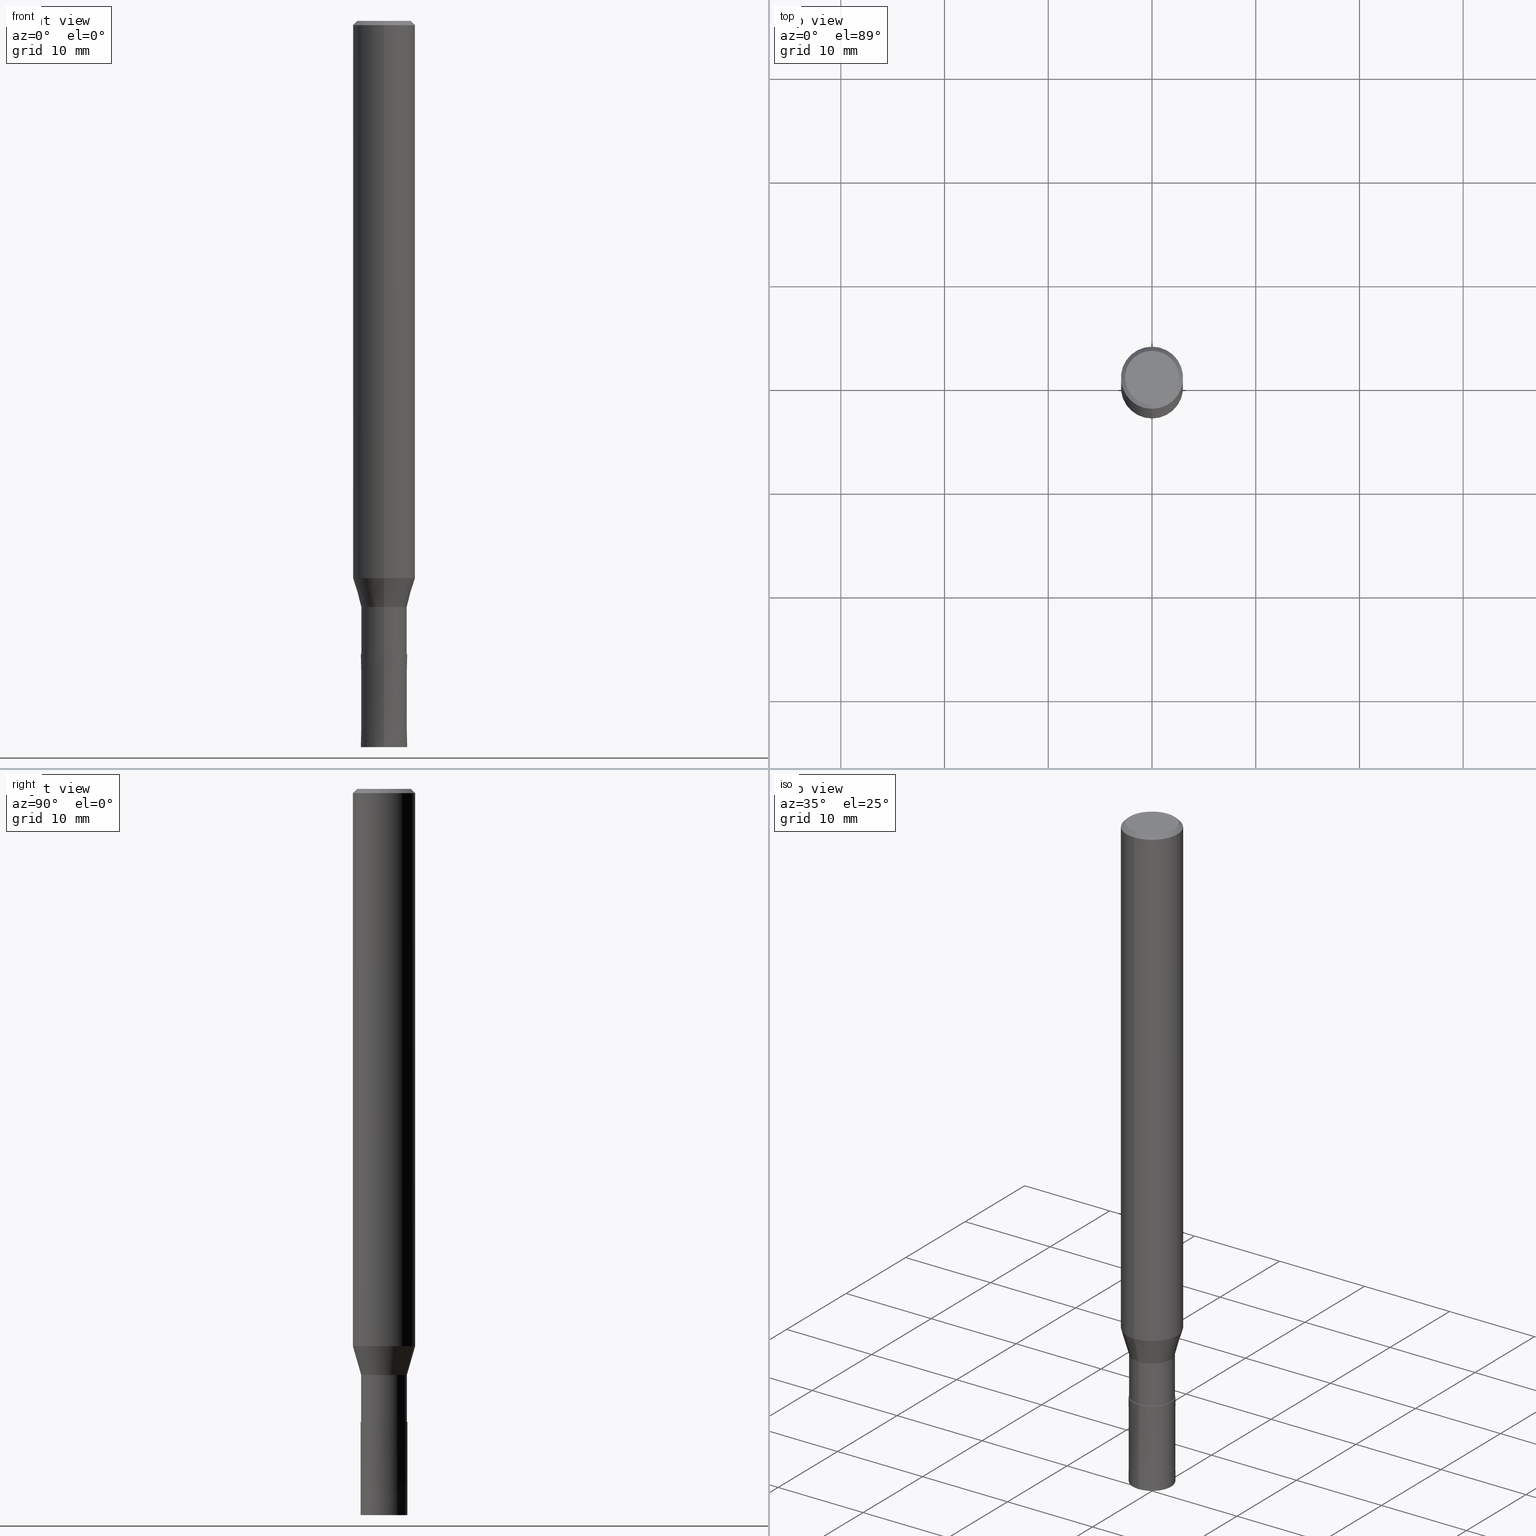
[diagram: canonical four-view strip — front | top / right | iso, engineering-drawing reading convention]
A machine part, canonical four-view strip (front | top / right | iso — engineering-drawing reading convention). The complete STEP part file that produces these views, byte-faithful:
ISO-10303-21;
HEADER;
FILE_DESCRIPTION(('no description'),'unknown implementation level');
FILE_NAME('DLC-AZS3045-135-Huellk.stp','  ',('CIMSOURCE GmbH'),('CADClick - KiM GmbH - www.kimweb.de'),'unknown preprocess','ACIS','unknown authorization');
FILE_SCHEMA(('automotive_design'));
ENDSEC;
DATA;
#1=MECHANICAL_DESIGN_GEOMETRIC_PRESENTATION_REPRESENTATION(' ',(#14,#15,#16,#17,#18,#19,#20,#21,#22,#23,#24,#25,#26,#27,#28,#29,#30,#31,#32,#33,#34,#35,#36,#37,#38,#39,#40,#41,#42,#43,#44,#45,#46,#47,#48,#49,#50,#51,#52,#53,#54,#55,#56,#57,#58,#59,#60,#61,#62,#63,#64,#65,#66,#67,#68,#69,#70,#71,#72),#10);
#2=PRODUCT_DEFINITION_CONTEXT('',#73,'design');
#3=APPLICATION_PROTOCOL_DEFINITION('INTERNATIONAL STANDARD','automotive_design',1994,#73);
#4=PRODUCT_CATEGORY_RELATIONSHIP('NONE','NONE',#74,#75);
#5=SHAPE_DEFINITION_REPRESENTATION(#76,#77);
#6=PRODUCT_DEFINITION_CONTEXT('',#78,'design');
#7=APPLICATION_PROTOCOL_DEFINITION('INTERNATIONAL STANDARD','automotive_design',1994,#78);
#8=PRODUCT_CATEGORY_RELATIONSHIP('NONE','NONE',#79,#80);
#9=SHAPE_DEFINITION_REPRESENTATION(#81,#82);
#10= (GEOMETRIC_REPRESENTATION_CONTEXT(3)GLOBAL_UNCERTAINTY_ASSIGNED_CONTEXT((#85))GLOBAL_UNIT_ASSIGNED_CONTEXT((#87,#88,#89))REPRESENTATION_CONTEXT('NONE','WORKSPACE'));
#14=STYLED_ITEM('',(#91),#92);
#15=STYLED_ITEM('',(#93),#94);
#16=STYLED_ITEM('',(#95),#96);
#17=STYLED_ITEM('',(#97),#98);
#18=STYLED_ITEM('',(#99),#100);
#19=STYLED_ITEM('',(#101),#102);
#20=STYLED_ITEM('',(#103),#104);
#21=STYLED_ITEM('',(#105),#106);
#22=STYLED_ITEM('',(#107),#108);
#23=STYLED_ITEM('',(#109),#110);
#24=STYLED_ITEM('',(#111),#112);
#25=STYLED_ITEM('',(#113),#114);
#26=STYLED_ITEM('',(#115),#116);
#27=STYLED_ITEM('',(#117),#118);
#28=STYLED_ITEM('',(#119),#120);
#29=STYLED_ITEM('',(#121),#122);
#30=STYLED_ITEM('',(#123),#124);
#31=STYLED_ITEM('',(#125),#126);
#32=STYLED_ITEM('',(#127),#128);
#33=STYLED_ITEM('',(#129),#130);
#34=STYLED_ITEM('',(#131),#132);
#35=STYLED_ITEM('',(#133),#134);
#36=STYLED_ITEM('',(#135),#136);
#37=STYLED_ITEM('',(#137),#138);
#38=STYLED_ITEM('',(#139),#140);
#39=STYLED_ITEM('',(#141),#142);
#40=STYLED_ITEM('',(#143),#144);
#41=STYLED_ITEM('',(#145),#146);
#42=STYLED_ITEM('',(#147),#148);
#43=STYLED_ITEM('',(#149),#150);
#44=STYLED_ITEM('',(#151),#152);
#45=STYLED_ITEM('',(#153),#154);
#46=STYLED_ITEM('',(#155),#156);
#47=STYLED_ITEM('',(#157),#158);
#48=STYLED_ITEM('',(#159),#160);
#49=STYLED_ITEM('',(#161),#162);
#50=STYLED_ITEM('',(#163),#164);
#51=STYLED_ITEM('',(#165),#166);
#52=STYLED_ITEM('',(#167),#168);
#53=STYLED_ITEM('',(#169),#170);
#54=STYLED_ITEM('',(#171),#172);
#55=STYLED_ITEM('',(#173),#174);
#56=STYLED_ITEM('',(#175),#176);
#57=STYLED_ITEM('',(#177),#178);
#58=STYLED_ITEM('',(#179),#180);
#59=STYLED_ITEM('',(#181),#182);
#60=STYLED_ITEM('',(#183),#184);
#61=STYLED_ITEM('',(#185),#186);
#62=STYLED_ITEM('',(#187),#188);
#63=STYLED_ITEM('',(#189),#190);
#64=STYLED_ITEM('',(#191),#192);
#65=STYLED_ITEM('',(#193),#194);
#66=STYLED_ITEM('',(#195),#196);
#67=STYLED_ITEM('',(#197),#198);
#68=STYLED_ITEM('',(#199),#200);
#69=STYLED_ITEM('',(#201),#202);
#70=STYLED_ITEM('',(#203),#204);
#71=STYLED_ITEM('',(#205),#206);
#72=STYLED_ITEM('',(#207),#208);
#73=APPLICATION_CONTEXT(' ');
#74=PRODUCT_CATEGORY('part','NONE');
#75=PRODUCT_RELATED_PRODUCT_CATEGORY('detail',' ',(#209));
#76=PRODUCT_DEFINITION_SHAPE('NONE','NONE',#210);
#77=ADVANCED_BREP_SHAPE_REPRESENTATION('1',(#96,#211),#10);
#78=APPLICATION_CONTEXT(' ');
#79=PRODUCT_CATEGORY('part','NONE');
#80=PRODUCT_RELATED_PRODUCT_CATEGORY('detail',' ',(#212));
#81=PRODUCT_DEFINITION_SHAPE('NONE','NONE',#213);
#82=ADVANCED_BREP_SHAPE_REPRESENTATION('2',(#200,#214),#10);
#85=UNCERTAINTY_MEASURE_WITH_UNIT(LENGTH_MEASURE(1.0E-006),#87,'','');
#87= (CONVERSION_BASED_UNIT('MILLIMETRE',#217)LENGTH_UNIT()NAMED_UNIT(#220));
#88= (NAMED_UNIT(#222)PLANE_ANGLE_UNIT()SI_UNIT($,.RADIAN.));
#89= (NAMED_UNIT(#222)SOLID_ANGLE_UNIT()SI_UNIT($,.STERADIAN.));
#91=PRESENTATION_STYLE_ASSIGNMENT((#228));
#92=VERTEX_POINT('',#229);
#93=PRESENTATION_STYLE_ASSIGNMENT((#230));
#94=EDGE_CURVE('',#114,#116,#231,.T.);
#95=PRESENTATION_STYLE_ASSIGNMENT((#232));
#96=MANIFOLD_SOLID_BREP('1',#233);
#97=PRESENTATION_STYLE_ASSIGNMENT((#234));
#98=EDGE_CURVE('',#156,#196,#235,.T.);
#99=PRESENTATION_STYLE_ASSIGNMENT((#236));
#100=EDGE_CURVE('',#114,#132,#237,.T.);
#101=PRESENTATION_STYLE_ASSIGNMENT((#238));
#102=EDGE_CURVE('',#140,#114,#239,.T.);
#103=PRESENTATION_STYLE_ASSIGNMENT((#240));
#104=VERTEX_POINT('',#241);
#105=PRESENTATION_STYLE_ASSIGNMENT((#242));
#106=EDGE_CURVE('',#92,#148,#243,.T.);
#107=PRESENTATION_STYLE_ASSIGNMENT((#244));
#108=EDGE_CURVE('',#148,#92,#245,.T.);
#109=PRESENTATION_STYLE_ASSIGNMENT((#246));
#110=ADVANCED_FACE('',(#247),#248,.T.);
#111=PRESENTATION_STYLE_ASSIGNMENT((#249));
#112=EDGE_CURVE('',#198,#178,#250,.T.);
#113=PRESENTATION_STYLE_ASSIGNMENT((#251));
#114=VERTEX_POINT('',#252);
#115=PRESENTATION_STYLE_ASSIGNMENT((#253));
#116=VERTEX_POINT('',#254);
#117=PRESENTATION_STYLE_ASSIGNMENT((#255));
#118=EDGE_CURVE('',#180,#132,#256,.T.);
#119=PRESENTATION_STYLE_ASSIGNMENT((#257));
#120=EDGE_CURVE('',#196,#156,#258,.T.);
#121=PRESENTATION_STYLE_ASSIGNMENT((#259));
#122=ADVANCED_FACE('',(#260),#261,.T.);
#123=PRESENTATION_STYLE_ASSIGNMENT((#262));
#124=EDGE_CURVE('',#116,#192,#263,.T.);
#125=PRESENTATION_STYLE_ASSIGNMENT((#264));
#126=EDGE_CURVE('',#140,#192,#265,.T.);
#127=PRESENTATION_STYLE_ASSIGNMENT((#266));
#128=ADVANCED_FACE('',(#267),#268,.T.);
#129=PRESENTATION_STYLE_ASSIGNMENT((#269));
#130=EDGE_CURVE('',#178,#204,#270,.T.);
#131=PRESENTATION_STYLE_ASSIGNMENT((#271));
#132=VERTEX_POINT('',#272);
#133=PRESENTATION_STYLE_ASSIGNMENT((#273));
#134=VERTEX_POINT('',#274);
#135=PRESENTATION_STYLE_ASSIGNMENT((#275));
#136=EDGE_CURVE('',#134,#148,#276,.T.);
#137=PRESENTATION_STYLE_ASSIGNMENT((#277));
#138=EDGE_CURVE('',#134,#150,#278,.T.);
#139=PRESENTATION_STYLE_ASSIGNMENT((#279));
#140=VERTEX_POINT('',#280);
#141=PRESENTATION_STYLE_ASSIGNMENT((#281));
#142=ADVANCED_FACE('',(#282),#283,.T.);
#143=PRESENTATION_STYLE_ASSIGNMENT((#284));
#144=ADVANCED_FACE('',(#285),#286,.T.);
#145=PRESENTATION_STYLE_ASSIGNMENT((#287));
#146=ADVANCED_FACE('',(#288),#289,.T.);
#147=PRESENTATION_STYLE_ASSIGNMENT((#290));
#148=VERTEX_POINT('',#291);
#149=PRESENTATION_STYLE_ASSIGNMENT((#292));
#150=VERTEX_POINT('',#293);
#151=PRESENTATION_STYLE_ASSIGNMENT((#294));
#152=EDGE_CURVE('',#198,#104,#295,.T.);
#153=PRESENTATION_STYLE_ASSIGNMENT((#296));
#154=EDGE_CURVE('',#92,#150,#297,.T.);
#155=PRESENTATION_STYLE_ASSIGNMENT((#298));
#156=VERTEX_POINT('',#299);
#157=PRESENTATION_STYLE_ASSIGNMENT((#300));
#158=EDGE_CURVE('',#104,#198,#301,.T.);
#159=PRESENTATION_STYLE_ASSIGNMENT((#302));
#160=ADVANCED_FACE('',(#303),#304,.T.);
#161=PRESENTATION_STYLE_ASSIGNMENT((#305));
#162=ADVANCED_FACE('',(#306),#307,.T.);
#163=PRESENTATION_STYLE_ASSIGNMENT((#308));
#164=EDGE_CURVE('',#116,#114,#309,.T.);
#165=PRESENTATION_STYLE_ASSIGNMENT((#310));
#166=EDGE_CURVE('',#204,#178,#311,.T.);
#167=PRESENTATION_STYLE_ASSIGNMENT((#312));
#168=EDGE_CURVE('',#156,#204,#313,.T.);
#169=PRESENTATION_STYLE_ASSIGNMENT((#314));
#170=ADVANCED_FACE('',(#315),#316,.T.);
#171=PRESENTATION_STYLE_ASSIGNMENT((#317));
#172=ADVANCED_FACE('',(#318),#319,.T.);
#173=PRESENTATION_STYLE_ASSIGNMENT((#320));
#174=EDGE_CURVE('',#150,#134,#321,.T.);
#175=PRESENTATION_STYLE_ASSIGNMENT((#322));
#176=EDGE_CURVE('',#178,#196,#323,.T.);
#177=PRESENTATION_STYLE_ASSIGNMENT((#324));
#178=VERTEX_POINT('',#325);
#179=PRESENTATION_STYLE_ASSIGNMENT((#326));
#180=VERTEX_POINT('',#327);
#181=PRESENTATION_STYLE_ASSIGNMENT((#328));
#182=EDGE_CURVE('',#204,#104,#329,.T.);
#183=PRESENTATION_STYLE_ASSIGNMENT((#330));
#184=ADVANCED_FACE('',(#331,#332),#333,.T.);
#185=PRESENTATION_STYLE_ASSIGNMENT((#334));
#186=ADVANCED_FACE('',(#335),#336,.T.);
#187=PRESENTATION_STYLE_ASSIGNMENT((#337));
#188=ADVANCED_FACE('',(#338),#339,.T.);
#189=PRESENTATION_STYLE_ASSIGNMENT((#340));
#190=EDGE_CURVE('',#180,#116,#341,.T.);
#191=PRESENTATION_STYLE_ASSIGNMENT((#342));
#192=VERTEX_POINT('',#343);
#193=PRESENTATION_STYLE_ASSIGNMENT((#344));
#194=EDGE_CURVE('',#192,#140,#345,.T.);
#195=PRESENTATION_STYLE_ASSIGNMENT((#346));
#196=VERTEX_POINT('',#347);
#197=PRESENTATION_STYLE_ASSIGNMENT((#348));
#198=VERTEX_POINT('',#349);
#199=PRESENTATION_STYLE_ASSIGNMENT((#350));
#200=MANIFOLD_SOLID_BREP('2',#351);
#201=PRESENTATION_STYLE_ASSIGNMENT((#352));
#202=ADVANCED_FACE('',(#353),#354,.T.);
#203=PRESENTATION_STYLE_ASSIGNMENT((#355));
#204=VERTEX_POINT('',#356);
#205=PRESENTATION_STYLE_ASSIGNMENT((#357));
#206=ADVANCED_FACE('',(#358),#359,.T.);
#207=PRESENTATION_STYLE_ASSIGNMENT((#360));
#208=EDGE_CURVE('',#132,#180,#361,.T.);
#209=PRODUCT('1','1','PART-1-DESC',(#362));
#210=PRODUCT_DEFINITION('NONE','NONE',#363,#2);
#211=AXIS2_PLACEMENT_3D('',#364,#365,#366);
#212=PRODUCT('2','2','PART-2-DESC',(#367));
#213=PRODUCT_DEFINITION('NONE','NONE',#368,#6);
#214=AXIS2_PLACEMENT_3D('',#369,#370,#371);
#217=LENGTH_MEASURE_WITH_UNIT(LENGTH_MEASURE(1.0),#372);
#220=DIMENSIONAL_EXPONENTS(1.0,0.0,0.0,0.0,0.0,0.0,0.0);
#222=DIMENSIONAL_EXPONENTS(0.0,0.0,0.0,0.0,0.0,0.0,0.0);
#228=POINT_STYLE(' ',#373,POSITIVE_LENGTH_MEASURE(1.0E-006),#374);
#229=CARTESIAN_POINT('',(2.75536429610035E-016,-2.25,-70.0));
#230=CURVE_STYLE('',#375,POSITIVE_LENGTH_MEASURE(1.0E-006),#376);
#231=CIRCLE('',#377,3.0);
#232=SURFACE_STYLE_USAGE(.BOTH.,#378);
#233=CLOSED_SHELL('',(#206,#170,#122,#160,#184,#162,#186,#172,#142,#188,#110));
#234=CURVE_STYLE('',#379,POSITIVE_LENGTH_MEASURE(1.0E-006),#380);
#235=CIRCLE('',#381,2.19995);
#236=CURVE_STYLE('',#382,POSITIVE_LENGTH_MEASURE(1.0E-006),#383);
#237=LINE('',#384,#385);
#238=CURVE_STYLE('',#386,POSITIVE_LENGTH_MEASURE(1.0E-006),#387);
#239=LINE('',#388,#389);
#240=POINT_STYLE(' ',#390,POSITIVE_LENGTH_MEASURE(1.0E-006),#391);
#241=CARTESIAN_POINT('',(3.67375783114944E-016,-2.99995,-53.71));
#242=CURVE_STYLE('',#392,POSITIVE_LENGTH_MEASURE(1.0E-006),#393);
#243=CIRCLE('',#394,2.25);
#244=CURVE_STYLE('',#395,POSITIVE_LENGTH_MEASURE(1.0E-006),#396);
#245=CIRCLE('',#397,2.25);
#246=SURFACE_STYLE_USAGE(.BOTH.,#398);
#247=FACE_OUTER_BOUND('',#399,.T.);
#248=PLANE('',#400);
#249=CURVE_STYLE('',#401,POSITIVE_LENGTH_MEASURE(1.0E-006),#402);
#250=LINE('',#403,#404);
#251=POINT_STYLE(' ',#405,POSITIVE_LENGTH_MEASURE(1.0E-006),#406);
#252=CARTESIAN_POINT('',(0.0,3.0,-0.399999999999999));
#253=POINT_STYLE(' ',#407,POSITIVE_LENGTH_MEASURE(1.0E-006),#408);
#254=CARTESIAN_POINT('',(3.67381906146713E-016,-3.0,-0.399999999999999));
#255=CURVE_STYLE('',#409,POSITIVE_LENGTH_MEASURE(1.0E-006),#410);
#256=CIRCLE('',#411,3.0);
#257=CURVE_STYLE('',#412,POSITIVE_LENGTH_MEASURE(1.0E-006),#413);
#258=CIRCLE('',#414,2.19995);
#259=SURFACE_STYLE_USAGE(.BOTH.,#415);
#260=FACE_OUTER_BOUND('',#416,.T.);
#261=CYLINDRICAL_SURFACE('',#417,3.0);
#262=CURVE_STYLE('',#418,POSITIVE_LENGTH_MEASURE(1.0E-006),#419);
#263=LINE('',#420,#421);
#264=CURVE_STYLE('',#422,POSITIVE_LENGTH_MEASURE(1.0E-006),#423);
#265=CIRCLE('',#424,2.6);
#266=SURFACE_STYLE_USAGE(.BOTH.,#425);
#267=FACE_OUTER_BOUND('',#426,.T.);
#268=PLANE('',#427);
#269=CURVE_STYLE('',#428,POSITIVE_LENGTH_MEASURE(1.0E-006),#429);
#270=CIRCLE('',#430,2.19995);
#271=POINT_STYLE(' ',#431,POSITIVE_LENGTH_MEASURE(1.0E-006),#432);
#272=CARTESIAN_POINT('',(0.0,3.0,-53.71));
#273=POINT_STYLE(' ',#433,POSITIVE_LENGTH_MEASURE(1.0E-006),#434);
#274=CARTESIAN_POINT('',(0.0,2.2499,-61.0));
#275=CURVE_STYLE('',#435,POSITIVE_LENGTH_MEASURE(1.0E-006),#436);
#276=LINE('',#437,#438);
#277=CURVE_STYLE('',#439,POSITIVE_LENGTH_MEASURE(1.0E-006),#440);
#278=CIRCLE('',#441,2.2499);
#279=POINT_STYLE(' ',#442,POSITIVE_LENGTH_MEASURE(1.0E-006),#443);
#280=CARTESIAN_POINT('',(0.0,2.6,0.0));
#281=SURFACE_STYLE_USAGE(.BOTH.,#444);
#282=FACE_OUTER_BOUND('',#445,.T.);
#283=CONICAL_SURFACE('',#446,2.59995,0.279246180255813);
#284=SURFACE_STYLE_USAGE(.BOTH.,#447);
#285=FACE_OUTER_BOUND('',#448,.T.);
#286=PLANE('',#449);
#287=SURFACE_STYLE_USAGE(.BOTH.,#450);
#288=FACE_OUTER_BOUND('',#451,.T.);
#289=CONICAL_SURFACE('',#452,2.24995,1.11111111106773E-005);
#290=POINT_STYLE(' ',#453,POSITIVE_LENGTH_MEASURE(1.0E-006),#454);
#291=CARTESIAN_POINT('',(0.0,2.25,-70.0));
#292=POINT_STYLE(' ',#455,POSITIVE_LENGTH_MEASURE(1.0E-006),#456);
#293=CARTESIAN_POINT('',(2.75524183546497E-016,-2.2499,-61.0));
#294=CURVE_STYLE('',#457,POSITIVE_LENGTH_MEASURE(1.0E-006),#458);
#295=CIRCLE('',#459,2.99995);
#296=CURVE_STYLE('',#460,POSITIVE_LENGTH_MEASURE(1.0E-006),#461);
#297=LINE('',#462,#463);
#298=POINT_STYLE(' ',#464,POSITIVE_LENGTH_MEASURE(1.0E-006),#465);
#299=CARTESIAN_POINT('',(2.69407274809154E-016,-2.19995,-61.0));
#300=CURVE_STYLE('',#466,POSITIVE_LENGTH_MEASURE(1.0E-006),#467);
#301=CIRCLE('',#468,2.99995);
#302=SURFACE_STYLE_USAGE(.BOTH.,#469);
#303=FACE_OUTER_BOUND('',#470,.T.);
#304=CONICAL_SURFACE('',#471,2.8,0.78539816339745);
#305=SURFACE_STYLE_USAGE(.BOTH.,#472);
#306=FACE_OUTER_BOUND('',#473,.T.);
#307=PLANE('',#474);
#308=CURVE_STYLE('',#475,POSITIVE_LENGTH_MEASURE(1.0E-006),#476);
#309=CIRCLE('',#477,3.0);
#310=CURVE_STYLE('',#478,POSITIVE_LENGTH_MEASURE(1.0E-006),#479);
#311=CIRCLE('',#480,2.19995);
#312=CURVE_STYLE('',#481,POSITIVE_LENGTH_MEASURE(1.0E-006),#482);
#313=LINE('',#483,#484);
#314=SURFACE_STYLE_USAGE(.BOTH.,#485);
#315=FACE_OUTER_BOUND('',#486,.T.);
#316=CONICAL_SURFACE('',#487,2.59995,0.279246180255813);
#317=SURFACE_STYLE_USAGE(.BOTH.,#488);
#318=FACE_OUTER_BOUND('',#489,.T.);
#319=CYLINDRICAL_SURFACE('',#490,3.0);
#320=CURVE_STYLE('',#491,POSITIVE_LENGTH_MEASURE(1.0E-006),#492);
#321=CIRCLE('',#493,2.2499);
#322=CURVE_STYLE('',#494,POSITIVE_LENGTH_MEASURE(1.0E-006),#495);
#323=LINE('',#496,#497);
#324=POINT_STYLE(' ',#498,POSITIVE_LENGTH_MEASURE(1.0E-006),#499);
#325=CARTESIAN_POINT('',(0.0,2.19995,-56.5));
#326=POINT_STYLE(' ',#500,POSITIVE_LENGTH_MEASURE(1.0E-006),#501);
#327=CARTESIAN_POINT('',(3.67381906146713E-016,-3.0,-53.71));
#328=CURVE_STYLE('',#502,POSITIVE_LENGTH_MEASURE(1.0E-006),#503);
#329=LINE('',#504,#505);
#330=SURFACE_STYLE_USAGE(.BOTH.,#506);
#331=FACE_OUTER_BOUND('',#507,.T.);
#332=FACE_BOUND('',#508,.T.);
#333=PLANE('',#509);
#334=SURFACE_STYLE_USAGE(.BOTH.,#510);
#335=FACE_OUTER_BOUND('',#511,.T.);
#336=CONICAL_SURFACE('',#512,2.8,0.78539816339745);
#337=SURFACE_STYLE_USAGE(.BOTH.,#513);
#338=FACE_OUTER_BOUND('',#514,.T.);
#339=CYLINDRICAL_SURFACE('',#515,2.19995);
#340=CURVE_STYLE('',#516,POSITIVE_LENGTH_MEASURE(1.0E-006),#517);
#341=LINE('',#518,#519);
#342=POINT_STYLE(' ',#520,POSITIVE_LENGTH_MEASURE(1.0E-006),#521);
#343=CARTESIAN_POINT('',(3.18397651993818E-016,-2.6,0.0));
#344=CURVE_STYLE('',#522,POSITIVE_LENGTH_MEASURE(1.0E-006),#523);
#345=CIRCLE('',#524,2.6);
#346=POINT_STYLE(' ',#525,POSITIVE_LENGTH_MEASURE(1.0E-006),#526);
#347=CARTESIAN_POINT('',(0.0,2.19995,-61.0));
#348=POINT_STYLE(' ',#527,POSITIVE_LENGTH_MEASURE(1.0E-006),#528);
#349=CARTESIAN_POINT('',(0.0,2.99995,-53.71));
#350=SURFACE_STYLE_USAGE(.BOTH.,#529);
#351=CLOSED_SHELL('',(#202,#144,#146,#128));
#352=SURFACE_STYLE_USAGE(.BOTH.,#530);
#353=FACE_OUTER_BOUND('',#531,.T.);
#354=CONICAL_SURFACE('',#532,2.24995,1.11111111106773E-005);
#355=POINT_STYLE(' ',#533,POSITIVE_LENGTH_MEASURE(1.0E-006),#534);
#356=CARTESIAN_POINT('',(2.69407274809154E-016,-2.19995,-56.5));
#357=SURFACE_STYLE_USAGE(.BOTH.,#535);
#358=FACE_OUTER_BOUND('',#536,.T.);
#359=CYLINDRICAL_SURFACE('',#537,2.19995);
#360=CURVE_STYLE('',#538,POSITIVE_LENGTH_MEASURE(1.0E-006),#539);
#361=CIRCLE('',#540,3.0);
#362=PRODUCT_CONTEXT('',#73,'mechanical');
#363=PRODUCT_DEFINITION_FORMATION_WITH_SPECIFIED_SOURCE(' ','NONE',#209,.NOT_KNOWN.);
#364=CARTESIAN_POINT('',(0.0,0.0,0.0));
#365=DIRECTION('',(0.0,0.0,1.0));
#366=DIRECTION('',(1.0,0.0,0.0));
#367=PRODUCT_CONTEXT('',#78,'mechanical');
#368=PRODUCT_DEFINITION_FORMATION_WITH_SPECIFIED_SOURCE(' ','NONE',#212,.NOT_KNOWN.);
#369=CARTESIAN_POINT('',(0.0,0.0,0.0));
#370=DIRECTION('',(0.0,0.0,1.0));
#371=DIRECTION('',(1.0,0.0,0.0));
#372= (NAMED_UNIT(#220)LENGTH_UNIT()SI_UNIT(.MILLI.,.METRE.));
#373=PRE_DEFINED_MARKER('');
#374=COLOUR_RGB('',0.800000011920929,0.800000011920929,0.800000011920929);
#375=DRAUGHTING_PRE_DEFINED_CURVE_FONT('continuous');
#376=COLOUR_RGB('',0.498039215803146,0.498039215803146,0.498039215803146);
#377=AXIS2_PLACEMENT_3D('',#542,#543,#544);
#378=SURFACE_SIDE_STYLE('',(#545));
#379=DRAUGHTING_PRE_DEFINED_CURVE_FONT('continuous');
#380=COLOUR_RGB('',0.498039215803146,0.498039215803146,0.498039215803146);
#381=AXIS2_PLACEMENT_3D('',#546,#547,#548);
#382=DRAUGHTING_PRE_DEFINED_CURVE_FONT('continuous');
#383=COLOUR_RGB('',0.498039215803146,0.498039215803146,0.498039215803146);
#384=CARTESIAN_POINT('',(-3.67381906146713E-016,3.0,-27.055));
#385=VECTOR('',#549,1.0);
#386=DRAUGHTING_PRE_DEFINED_CURVE_FONT('continuous');
#387=COLOUR_RGB('',0.498039215803146,0.498039215803146,0.498039215803146);
#388=CARTESIAN_POINT('',(-3.42889779070266E-016,2.8,-0.199999999999996));
#389=VECTOR('',#550,1.0);
#390=PRE_DEFINED_MARKER('');
#391=COLOUR_RGB('',0.498039215803146,0.498039215803146,0.498039215803146);
#392=DRAUGHTING_PRE_DEFINED_CURVE_FONT('continuous');
#393=COLOUR_RGB('',0.800000011920929,0.800000011920929,0.800000011920929);
#394=AXIS2_PLACEMENT_3D('',#551,#552,#553);
#395=DRAUGHTING_PRE_DEFINED_CURVE_FONT('continuous');
#396=COLOUR_RGB('',0.800000011920929,0.800000011920929,0.800000011920929);
#397=AXIS2_PLACEMENT_3D('',#554,#555,#556);
#398=SURFACE_SIDE_STYLE('',(#557));
#399=EDGE_LOOP('',(#558,#559));
#400=AXIS2_PLACEMENT_3D('',#560,#561,#562);
#401=DRAUGHTING_PRE_DEFINED_CURVE_FONT('continuous');
#402=COLOUR_RGB('',0.498039215803146,0.498039215803146,0.498039215803146);
#403=CARTESIAN_POINT('',(-3.18391528962049E-016,2.59995,-55.105));
#404=VECTOR('',#563,1.0);
#405=PRE_DEFINED_MARKER('');
#406=COLOUR_RGB('',0.498039215803146,0.498039215803146,0.498039215803146);
#407=PRE_DEFINED_MARKER('');
#408=COLOUR_RGB('',0.498039215803146,0.498039215803146,0.498039215803146);
#409=DRAUGHTING_PRE_DEFINED_CURVE_FONT('continuous');
#410=COLOUR_RGB('',0.498039215803146,0.498039215803146,0.498039215803146);
#411=AXIS2_PLACEMENT_3D('',#564,#565,#566);
#412=DRAUGHTING_PRE_DEFINED_CURVE_FONT('continuous');
#413=COLOUR_RGB('',0.498039215803146,0.498039215803146,0.498039215803146);
#414=AXIS2_PLACEMENT_3D('',#567,#568,#569);
#415=SURFACE_SIDE_STYLE('',(#570));
#416=EDGE_LOOP('',(#571,#572,#573,#574));
#417=AXIS2_PLACEMENT_3D('',#575,#576,#577);
#418=DRAUGHTING_PRE_DEFINED_CURVE_FONT('continuous');
#419=COLOUR_RGB('',0.498039215803146,0.498039215803146,0.498039215803146);
#420=CARTESIAN_POINT('',(3.42889779070266E-016,-2.8,-0.199999999999996));
#421=VECTOR('',#578,1.0);
#422=DRAUGHTING_PRE_DEFINED_CURVE_FONT('continuous');
#423=COLOUR_RGB('',0.498039215803146,0.498039215803146,0.498039215803146);
#424=AXIS2_PLACEMENT_3D('',#579,#580,#581);
#425=SURFACE_SIDE_STYLE('',(#582));
#426=EDGE_LOOP('',(#583,#584));
#427=AXIS2_PLACEMENT_3D('',#585,#586,#587);
#428=DRAUGHTING_PRE_DEFINED_CURVE_FONT('continuous');
#429=COLOUR_RGB('',0.498039215803146,0.498039215803146,0.498039215803146);
#430=AXIS2_PLACEMENT_3D('',#588,#589,#590);
#431=PRE_DEFINED_MARKER('');
#432=COLOUR_RGB('',0.498039215803146,0.498039215803146,0.498039215803146);
#433=PRE_DEFINED_MARKER('');
#434=COLOUR_RGB('',0.800000011920929,0.800000011920929,0.800000011920929);
#435=DRAUGHTING_PRE_DEFINED_CURVE_FONT('continuous');
#436=COLOUR_RGB('',0.800000011920929,0.800000011920929,0.800000011920929);
#437=CARTESIAN_POINT('',(-2.75530306578266E-016,2.24995,-65.5));
#438=VECTOR('',#591,1.0);
#439=DRAUGHTING_PRE_DEFINED_CURVE_FONT('continuous');
#440=COLOUR_RGB('',0.800000011920929,0.800000011920929,0.800000011920929);
#441=AXIS2_PLACEMENT_3D('',#592,#593,#594);
#442=PRE_DEFINED_MARKER('');
#443=COLOUR_RGB('',0.498039215803146,0.498039215803146,0.498039215803146);
#444=SURFACE_SIDE_STYLE('',(#595));
#445=EDGE_LOOP('',(#596,#597,#598,#599));
#446=AXIS2_PLACEMENT_3D('',#600,#601,#602);
#447=SURFACE_SIDE_STYLE('',(#603));
#448=EDGE_LOOP('',(#604,#605));
#449=AXIS2_PLACEMENT_3D('',#606,#607,#608);
#450=SURFACE_SIDE_STYLE('',(#609));
#451=EDGE_LOOP('',(#610,#611,#612,#613));
#452=AXIS2_PLACEMENT_3D('',#614,#615,#616);
#453=PRE_DEFINED_MARKER('');
#454=COLOUR_RGB('',0.800000011920929,0.800000011920929,0.800000011920929);
#455=PRE_DEFINED_MARKER('');
#456=COLOUR_RGB('',0.800000011920929,0.800000011920929,0.800000011920929);
#457=DRAUGHTING_PRE_DEFINED_CURVE_FONT('continuous');
#458=COLOUR_RGB('',0.498039215803146,0.498039215803146,0.498039215803146);
#459=AXIS2_PLACEMENT_3D('',#617,#618,#619);
#460=DRAUGHTING_PRE_DEFINED_CURVE_FONT('continuous');
#461=COLOUR_RGB('',0.800000011920929,0.800000011920929,0.800000011920929);
#462=CARTESIAN_POINT('',(2.75530306578266E-016,-2.24995,-65.5));
#463=VECTOR('',#620,1.0);
#464=PRE_DEFINED_MARKER('');
#465=COLOUR_RGB('',0.498039215803146,0.498039215803146,0.498039215803146);
#466=DRAUGHTING_PRE_DEFINED_CURVE_FONT('continuous');
#467=COLOUR_RGB('',0.498039215803146,0.498039215803146,0.498039215803146);
#468=AXIS2_PLACEMENT_3D('',#621,#622,#623);
#469=SURFACE_SIDE_STYLE('',(#624));
#470=EDGE_LOOP('',(#625,#626,#627,#628));
#471=AXIS2_PLACEMENT_3D('',#629,#630,#631);
#472=SURFACE_SIDE_STYLE('',(#632));
#473=EDGE_LOOP('',(#633,#634));
#474=AXIS2_PLACEMENT_3D('',#635,#636,#637);
#475=DRAUGHTING_PRE_DEFINED_CURVE_FONT('continuous');
#476=COLOUR_RGB('',0.498039215803146,0.498039215803146,0.498039215803146);
#477=AXIS2_PLACEMENT_3D('',#638,#639,#640);
#478=DRAUGHTING_PRE_DEFINED_CURVE_FONT('continuous');
#479=COLOUR_RGB('',0.498039215803146,0.498039215803146,0.498039215803146);
#480=AXIS2_PLACEMENT_3D('',#641,#642,#643);
#481=DRAUGHTING_PRE_DEFINED_CURVE_FONT('continuous');
#482=COLOUR_RGB('',0.498039215803146,0.498039215803146,0.498039215803146);
#483=CARTESIAN_POINT('',(2.69407274809154E-016,-2.19995,-58.75));
#484=VECTOR('',#644,1.0);
#485=SURFACE_SIDE_STYLE('',(#645));
#486=EDGE_LOOP('',(#646,#647,#648,#649));
#487=AXIS2_PLACEMENT_3D('',#650,#651,#652);
#488=SURFACE_SIDE_STYLE('',(#653));
#489=EDGE_LOOP('',(#654,#655,#656,#657));
#490=AXIS2_PLACEMENT_3D('',#658,#659,#660);
#491=DRAUGHTING_PRE_DEFINED_CURVE_FONT('continuous');
#492=COLOUR_RGB('',0.800000011920929,0.800000011920929,0.800000011920929);
#493=AXIS2_PLACEMENT_3D('',#661,#662,#663);
#494=DRAUGHTING_PRE_DEFINED_CURVE_FONT('continuous');
#495=COLOUR_RGB('',0.498039215803146,0.498039215803146,0.498039215803146);
#496=CARTESIAN_POINT('',(-2.69407274809154E-016,2.19995,-58.75));
#497=VECTOR('',#664,1.0);
#498=PRE_DEFINED_MARKER('');
#499=COLOUR_RGB('',0.498039215803146,0.498039215803146,0.498039215803146);
#500=PRE_DEFINED_MARKER('');
#501=COLOUR_RGB('',0.498039215803146,0.498039215803146,0.498039215803146);
#502=DRAUGHTING_PRE_DEFINED_CURVE_FONT('continuous');
#503=COLOUR_RGB('',0.498039215803146,0.498039215803146,0.498039215803146);
#504=CARTESIAN_POINT('',(3.18391528962049E-016,-2.59995,-55.105));
#505=VECTOR('',#665,1.0);
#506=SURFACE_SIDE_STYLE('',(#666));
#507=EDGE_LOOP('',(#667,#668));
#508=EDGE_LOOP('',(#669,#670));
#509=AXIS2_PLACEMENT_3D('',#671,#672,#673);
#510=SURFACE_SIDE_STYLE('',(#674));
#511=EDGE_LOOP('',(#675,#676,#677,#678));
#512=AXIS2_PLACEMENT_3D('',#679,#680,#681);
#513=SURFACE_SIDE_STYLE('',(#682));
#514=EDGE_LOOP('',(#683,#684,#685,#686));
#515=AXIS2_PLACEMENT_3D('',#687,#688,#689);
#516=DRAUGHTING_PRE_DEFINED_CURVE_FONT('continuous');
#517=COLOUR_RGB('',0.498039215803146,0.498039215803146,0.498039215803146);
#518=CARTESIAN_POINT('',(3.67381906146713E-016,-3.0,-27.055));
#519=VECTOR('',#690,1.0);
#520=PRE_DEFINED_MARKER('');
#521=COLOUR_RGB('',0.498039215803146,0.498039215803146,0.498039215803146);
#522=DRAUGHTING_PRE_DEFINED_CURVE_FONT('continuous');
#523=COLOUR_RGB('',0.498039215803146,0.498039215803146,0.498039215803146);
#524=AXIS2_PLACEMENT_3D('',#691,#692,#693);
#525=PRE_DEFINED_MARKER('');
#526=COLOUR_RGB('',0.498039215803146,0.498039215803146,0.498039215803146);
#527=PRE_DEFINED_MARKER('');
#528=COLOUR_RGB('',0.498039215803146,0.498039215803146,0.498039215803146);
#529=SURFACE_SIDE_STYLE('',(#694));
#530=SURFACE_SIDE_STYLE('',(#695));
#531=EDGE_LOOP('',(#696,#697,#698,#699));
#532=AXIS2_PLACEMENT_3D('',#700,#701,#702);
#533=PRE_DEFINED_MARKER('');
#534=COLOUR_RGB('',0.498039215803146,0.498039215803146,0.498039215803146);
#535=SURFACE_SIDE_STYLE('',(#703));
#536=EDGE_LOOP('',(#704,#705,#706,#707));
#537=AXIS2_PLACEMENT_3D('',#708,#709,#710);
#538=DRAUGHTING_PRE_DEFINED_CURVE_FONT('continuous');
#539=COLOUR_RGB('',0.498039215803146,0.498039215803146,0.498039215803146);
#540=AXIS2_PLACEMENT_3D('',#711,#712,#713);
#542=CARTESIAN_POINT('',(0.0,0.0,-0.399999999999999));
#543=DIRECTION('',(0.0,0.0,-1.0));
#544=DIRECTION('',(0.0,1.0,0.0));
#545=SURFACE_STYLE_FILL_AREA(#714);
#546=CARTESIAN_POINT('',(0.0,0.0,-61.0));
#547=DIRECTION('',(0.0,0.0,-1.0));
#548=DIRECTION('',(0.0,1.0,0.0));
#549=DIRECTION('',(0.0,0.0,-1.0));
#550=DIRECTION('',(-8.65927457071937E-017,0.707106781186549,-0.707106781186546));
#551=CARTESIAN_POINT('',(0.0,0.0,-70.0));
#552=DIRECTION('',(0.0,0.0,-1.0));
#553=DIRECTION('',(0.0,1.0,0.0));
#554=CARTESIAN_POINT('',(0.0,0.0,-70.0));
#555=DIRECTION('',(0.0,0.0,-1.0));
#556=DIRECTION('',(0.0,1.0,0.0));
#557=SURFACE_STYLE_FILL_AREA(#715);
#558=ORIENTED_EDGE('',*,*,#120,.T.);
#559=ORIENTED_EDGE('',*,*,#98,.T.);
#560=CARTESIAN_POINT('',(0.0,1.099975,-61.0));
#561=DIRECTION('',(0.0,0.0,-1.0));
#562=DIRECTION('',(0.0,1.0,0.0));
#563=DIRECTION('',(3.37539605616001E-017,-0.275631107549324,-0.961263487578267));
#564=CARTESIAN_POINT('',(0.0,0.0,-53.71));
#565=DIRECTION('',(0.0,0.0,-1.0));
#566=DIRECTION('',(0.0,1.0,0.0));
#567=CARTESIAN_POINT('',(0.0,0.0,-61.0));
#568=DIRECTION('',(0.0,0.0,-1.0));
#569=DIRECTION('',(0.0,1.0,0.0));
#570=SURFACE_STYLE_FILL_AREA(#716);
#571=ORIENTED_EDGE('',*,*,#100,.F.);
#572=ORIENTED_EDGE('',*,*,#94,.T.);
#573=ORIENTED_EDGE('',*,*,#190,.F.);
#574=ORIENTED_EDGE('',*,*,#208,.F.);
#575=CARTESIAN_POINT('',(0.0,0.0,-27.055));
#576=DIRECTION('',(-0.0,-0.0,1.0));
#577=DIRECTION('',(0.0,1.0,0.0));
#578=DIRECTION('',(-8.65927457071937E-017,0.707106781186549,0.707106781186546));
#579=CARTESIAN_POINT('',(0.0,0.0,0.0));
#580=DIRECTION('',(0.0,0.0,-1.0));
#581=DIRECTION('',(0.0,1.0,0.0));
#582=SURFACE_STYLE_FILL_AREA(#717);
#583=ORIENTED_EDGE('',*,*,#108,.T.);
#584=ORIENTED_EDGE('',*,*,#106,.T.);
#585=CARTESIAN_POINT('',(0.0,1.1225,-70.0));
#586=DIRECTION('',(0.0,0.0,-1.0));
#587=DIRECTION('',(0.0,1.0,0.0));
#588=CARTESIAN_POINT('',(0.0,0.0,-56.5));
#589=DIRECTION('',(0.0,0.0,-1.0));
#590=DIRECTION('',(0.0,1.0,0.0));
#591=DIRECTION('',(-1.36067372638819E-021,1.11111111104487E-005,-0.999999999938272));
#592=CARTESIAN_POINT('',(0.0,0.0,-61.0));
#593=DIRECTION('',(0.0,0.0,-1.0));
#594=DIRECTION('',(0.0,1.0,0.0));
#595=SURFACE_STYLE_FILL_AREA(#718);
#596=ORIENTED_EDGE('',*,*,#112,.T.);
#597=ORIENTED_EDGE('',*,*,#166,.F.);
#598=ORIENTED_EDGE('',*,*,#182,.T.);
#599=ORIENTED_EDGE('',*,*,#158,.T.);
#600=CARTESIAN_POINT('',(0.0,0.0,-55.105));
#601=DIRECTION('',(-0.0,-0.0,1.0));
#602=DIRECTION('',(0.0,1.0,0.0));
#603=SURFACE_STYLE_FILL_AREA(#719);
#604=ORIENTED_EDGE('',*,*,#138,.F.);
#605=ORIENTED_EDGE('',*,*,#174,.F.);
#606=CARTESIAN_POINT('',(0.0,1.12495,-61.0));
#607=DIRECTION('',(-0.0,0.0,1.0));
#608=DIRECTION('',(0.0,-1.0,0.0));
#609=SURFACE_STYLE_FILL_AREA(#720);
#610=ORIENTED_EDGE('',*,*,#136,.T.);
#611=ORIENTED_EDGE('',*,*,#106,.F.);
#612=ORIENTED_EDGE('',*,*,#154,.T.);
#613=ORIENTED_EDGE('',*,*,#174,.T.);
#614=CARTESIAN_POINT('',(0.0,0.0,-65.5));
#615=DIRECTION('',(0.0,-0.0,-1.0));
#616=DIRECTION('',(0.0,1.0,0.0));
#617=CARTESIAN_POINT('',(0.0,0.0,-53.71));
#618=DIRECTION('',(0.0,0.0,-1.0));
#619=DIRECTION('',(0.0,1.0,0.0));
#620=DIRECTION('',(-1.36067372638819E-021,1.11111111104487E-005,0.999999999938272));
#621=CARTESIAN_POINT('',(0.0,0.0,-53.71));
#622=DIRECTION('',(0.0,0.0,-1.0));
#623=DIRECTION('',(0.0,1.0,0.0));
#624=SURFACE_STYLE_FILL_AREA(#721);
#625=ORIENTED_EDGE('',*,*,#102,.F.);
#626=ORIENTED_EDGE('',*,*,#126,.T.);
#627=ORIENTED_EDGE('',*,*,#124,.F.);
#628=ORIENTED_EDGE('',*,*,#94,.F.);
#629=CARTESIAN_POINT('',(0.0,0.0,-0.199999999999996));
#630=DIRECTION('',(0.0,-0.0,-1.0));
#631=DIRECTION('',(0.0,1.0,0.0));
#632=SURFACE_STYLE_FILL_AREA(#722);
#633=ORIENTED_EDGE('',*,*,#126,.F.);
#634=ORIENTED_EDGE('',*,*,#194,.F.);
#635=CARTESIAN_POINT('',(0.0,1.3,0.0));
#636=DIRECTION('',(-0.0,0.0,1.0));
#637=DIRECTION('',(0.0,-1.0,0.0));
#638=CARTESIAN_POINT('',(0.0,0.0,-0.399999999999999));
#639=DIRECTION('',(0.0,0.0,-1.0));
#640=DIRECTION('',(0.0,1.0,0.0));
#641=CARTESIAN_POINT('',(0.0,0.0,-56.5));
#642=DIRECTION('',(0.0,0.0,-1.0));
#643=DIRECTION('',(0.0,1.0,0.0));
#644=DIRECTION('',(-0.0,-0.0,1.0));
#645=SURFACE_STYLE_FILL_AREA(#723);
#646=ORIENTED_EDGE('',*,*,#112,.F.);
#647=ORIENTED_EDGE('',*,*,#152,.T.);
#648=ORIENTED_EDGE('',*,*,#182,.F.);
#649=ORIENTED_EDGE('',*,*,#130,.F.);
#650=CARTESIAN_POINT('',(0.0,0.0,-55.105));
#651=DIRECTION('',(-0.0,-0.0,1.0));
#652=DIRECTION('',(0.0,1.0,0.0));
#653=SURFACE_STYLE_FILL_AREA(#724);
#654=ORIENTED_EDGE('',*,*,#100,.T.);
#655=ORIENTED_EDGE('',*,*,#118,.F.);
#656=ORIENTED_EDGE('',*,*,#190,.T.);
#657=ORIENTED_EDGE('',*,*,#164,.T.);
#658=CARTESIAN_POINT('',(0.0,0.0,-27.055));
#659=DIRECTION('',(-0.0,-0.0,1.0));
#660=DIRECTION('',(0.0,1.0,0.0));
#661=CARTESIAN_POINT('',(0.0,0.0,-61.0));
#662=DIRECTION('',(0.0,0.0,-1.0));
#663=DIRECTION('',(0.0,1.0,0.0));
#664=DIRECTION('',(0.0,0.0,-1.0));
#665=DIRECTION('',(3.37539605616001E-017,-0.275631107549324,0.961263487578267));
#666=SURFACE_STYLE_FILL_AREA(#725);
#667=ORIENTED_EDGE('',*,*,#208,.T.);
#668=ORIENTED_EDGE('',*,*,#118,.T.);
#669=ORIENTED_EDGE('',*,*,#152,.F.);
#670=ORIENTED_EDGE('',*,*,#158,.F.);
#671=CARTESIAN_POINT('',(0.0,1.5,-53.71));
#672=DIRECTION('',(0.0,0.0,-1.0));
#673=DIRECTION('',(0.0,1.0,0.0));
#674=SURFACE_STYLE_FILL_AREA(#726);
#675=ORIENTED_EDGE('',*,*,#102,.T.);
#676=ORIENTED_EDGE('',*,*,#164,.F.);
#677=ORIENTED_EDGE('',*,*,#124,.T.);
#678=ORIENTED_EDGE('',*,*,#194,.T.);
#679=CARTESIAN_POINT('',(0.0,0.0,-0.199999999999996));
#680=DIRECTION('',(0.0,-0.0,-1.0));
#681=DIRECTION('',(0.0,1.0,0.0));
#682=SURFACE_STYLE_FILL_AREA(#727);
#683=ORIENTED_EDGE('',*,*,#176,.T.);
#684=ORIENTED_EDGE('',*,*,#98,.F.);
#685=ORIENTED_EDGE('',*,*,#168,.T.);
#686=ORIENTED_EDGE('',*,*,#166,.T.);
#687=CARTESIAN_POINT('',(0.0,0.0,-58.75));
#688=DIRECTION('',(-0.0,-0.0,1.0));
#689=DIRECTION('',(0.0,1.0,0.0));
#690=DIRECTION('',(-0.0,-0.0,1.0));
#691=CARTESIAN_POINT('',(0.0,0.0,0.0));
#692=DIRECTION('',(0.0,0.0,-1.0));
#693=DIRECTION('',(0.0,1.0,0.0));
#694=SURFACE_STYLE_FILL_AREA(#728);
#695=SURFACE_STYLE_FILL_AREA(#729);
#696=ORIENTED_EDGE('',*,*,#136,.F.);
#697=ORIENTED_EDGE('',*,*,#138,.T.);
#698=ORIENTED_EDGE('',*,*,#154,.F.);
#699=ORIENTED_EDGE('',*,*,#108,.F.);
#700=CARTESIAN_POINT('',(0.0,0.0,-65.5));
#701=DIRECTION('',(0.0,-0.0,-1.0));
#702=DIRECTION('',(0.0,1.0,0.0));
#703=SURFACE_STYLE_FILL_AREA(#730);
#704=ORIENTED_EDGE('',*,*,#176,.F.);
#705=ORIENTED_EDGE('',*,*,#130,.T.);
#706=ORIENTED_EDGE('',*,*,#168,.F.);
#707=ORIENTED_EDGE('',*,*,#120,.F.);
#708=CARTESIAN_POINT('',(0.0,0.0,-58.75));
#709=DIRECTION('',(-0.0,-0.0,1.0));
#710=DIRECTION('',(0.0,1.0,0.0));
#711=CARTESIAN_POINT('',(0.0,0.0,-53.71));
#712=DIRECTION('',(0.0,0.0,-1.0));
#713=DIRECTION('',(0.0,1.0,0.0));
#714=FILL_AREA_STYLE('',(#731));
#715=FILL_AREA_STYLE('',(#732));
#716=FILL_AREA_STYLE('',(#733));
#717=FILL_AREA_STYLE('',(#734));
#718=FILL_AREA_STYLE('',(#735));
#719=FILL_AREA_STYLE('',(#736));
#720=FILL_AREA_STYLE('',(#737));
#721=FILL_AREA_STYLE('',(#738));
#722=FILL_AREA_STYLE('',(#739));
#723=FILL_AREA_STYLE('',(#740));
#724=FILL_AREA_STYLE('',(#741));
#725=FILL_AREA_STYLE('',(#742));
#726=FILL_AREA_STYLE('',(#743));
#727=FILL_AREA_STYLE('',(#744));
#728=FILL_AREA_STYLE('',(#745));
#729=FILL_AREA_STYLE('',(#746));
#730=FILL_AREA_STYLE('',(#747));
#731=FILL_AREA_STYLE_COLOUR('',#748);
#732=FILL_AREA_STYLE_COLOUR('',#749);
#733=FILL_AREA_STYLE_COLOUR('',#750);
#734=FILL_AREA_STYLE_COLOUR('',#751);
#735=FILL_AREA_STYLE_COLOUR('',#752);
#736=FILL_AREA_STYLE_COLOUR('',#753);
#737=FILL_AREA_STYLE_COLOUR('',#754);
#738=FILL_AREA_STYLE_COLOUR('',#755);
#739=FILL_AREA_STYLE_COLOUR('',#756);
#740=FILL_AREA_STYLE_COLOUR('',#757);
#741=FILL_AREA_STYLE_COLOUR('',#758);
#742=FILL_AREA_STYLE_COLOUR('',#759);
#743=FILL_AREA_STYLE_COLOUR('',#760);
#744=FILL_AREA_STYLE_COLOUR('',#761);
#745=FILL_AREA_STYLE_COLOUR('',#762);
#746=FILL_AREA_STYLE_COLOUR('',#763);
#747=FILL_AREA_STYLE_COLOUR('',#764);
#748=COLOUR_RGB('',0.498039215803146,0.498039215803146,0.498039215803146);
#749=COLOUR_RGB('',0.498039215803146,0.498039215803146,0.498039215803146);
#750=COLOUR_RGB('',0.498039215803146,0.498039215803146,0.498039215803146);
#751=COLOUR_RGB('',0.800000011920929,0.800000011920929,0.800000011920929);
#752=COLOUR_RGB('',0.498039215803146,0.498039215803146,0.498039215803146);
#753=COLOUR_RGB('',0.800000011920929,0.800000011920929,0.800000011920929);
#754=COLOUR_RGB('',0.800000011920929,0.800000011920929,0.800000011920929);
#755=COLOUR_RGB('',0.498039215803146,0.498039215803146,0.498039215803146);
#756=COLOUR_RGB('',0.498039215803146,0.498039215803146,0.498039215803146);
#757=COLOUR_RGB('',0.498039215803146,0.498039215803146,0.498039215803146);
#758=COLOUR_RGB('',0.498039215803146,0.498039215803146,0.498039215803146);
#759=COLOUR_RGB('',0.498039215803146,0.498039215803146,0.498039215803146);
#760=COLOUR_RGB('',0.498039215803146,0.498039215803146,0.498039215803146);
#761=COLOUR_RGB('',0.498039215803146,0.498039215803146,0.498039215803146);
#762=COLOUR_RGB('',0.800000011920929,0.800000011920929,0.800000011920929);
#763=COLOUR_RGB('',0.800000011920929,0.800000011920929,0.800000011920929);
#764=COLOUR_RGB('',0.498039215803146,0.498039215803146,0.498039215803146);
#765=AXIS2_PLACEMENT_3D('PCS',#766,#767,#768);
#766=CARTESIAN_POINT('',(0.0,0.0,0.0));
#767=DIRECTION('',(0.0,0.0,1.0));
#768=DIRECTION('',(1.0,0.0,0.0));
#769=AXIS2_PLACEMENT_3D('CIP',#770,#771,#772);
#770=CARTESIAN_POINT('',(0.0,0.0,-70.0));
#771=DIRECTION('',(0.0,0.0,1.0));
#772=DIRECTION('',(1.0,0.0,0.0));
#773=AXIS2_PLACEMENT_3D('CRP',#774,#775,#776);
#774=CARTESIAN_POINT('',(-2.25,0.0,-70.0));
#775=DIRECTION('',(0.0,0.0,1.0));
#776=DIRECTION('',(1.0,0.0,0.0));
#777=AXIS2_PLACEMENT_3D('MCS',#778,#779,#780);
#778=CARTESIAN_POINT('',(0.0,0.0,-53.71));
#779=DIRECTION('',(0.0,0.0,1.0));
#780=DIRECTION('',(1.0,0.0,0.0));
#781=CONSTRUCTIVE_GEOMETRY_REPRESENTATION_RELATIONSHIP('coordinate systems',$,#77,#782);
#782=CONSTRUCTIVE_GEOMETRY_REPRESENTATION('coordinate systems',(#765,#769,#773,#777),#10);
ENDSEC;
END-ISO-10303-21;
